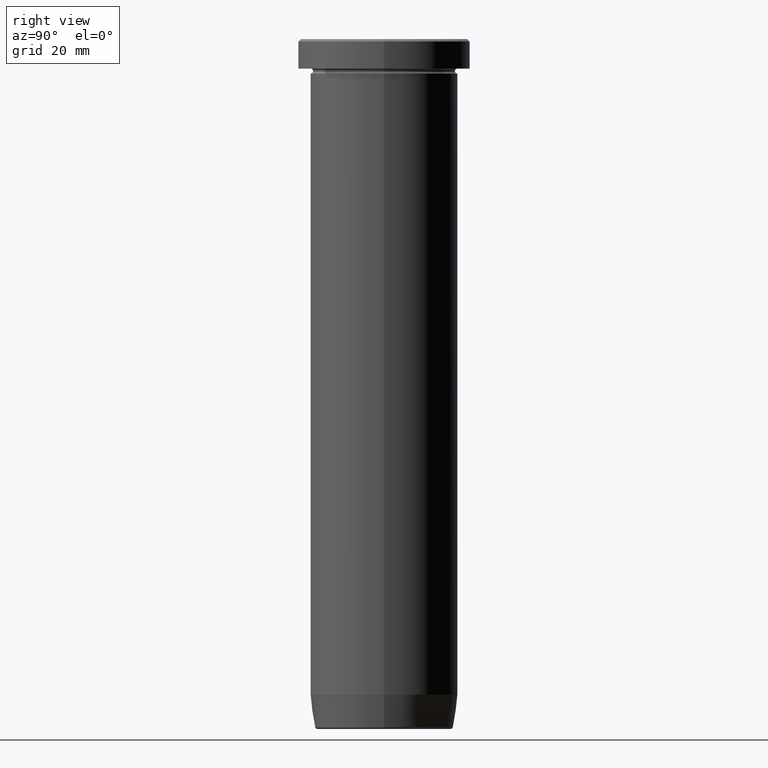
[diagram: clean part render]
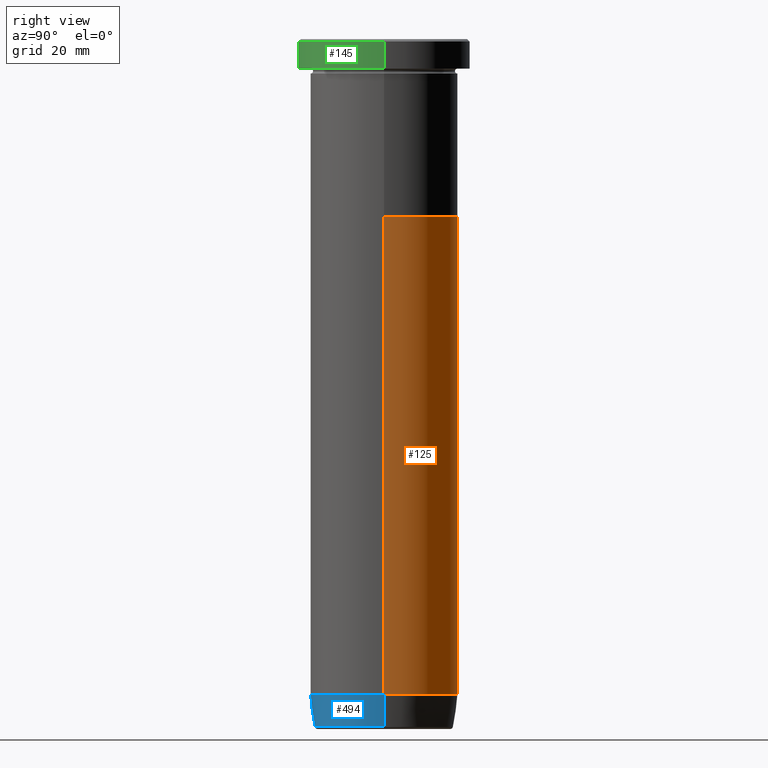
[diagram: same view with three faces highlighted in distinct colors, each labeled with its STEP entity id]
A machine part, right view with three faces highlighted in distinct colors.
Their STEP definitions:

[orange] entity #125 — the highlighted cylindrical surface (partial cylindrical patch) has radius 15 mm, axis along (-0, -0, 1).
#1 = CARTESIAN_POINT ( 'NONE',  ( -15.00000000000000000, 1.836970198721029589E-15, -36.00000000000000000 ) ) ;
#15 = VERTEX_POINT ( 'NONE', #442 ) ;
#25 = CARTESIAN_POINT ( 'NONE',  ( 0.000000000000000000, 0.000000000000000000, -132.9999999999999716 ) ) ;
#37 = DIRECTION ( 'NONE',  ( 1.000000000000000000, 0.000000000000000000, 0.000000000000000000 ) ) ;
#51 = CIRCLE ( 'NONE', #246, 15.00000000000000000 ) ;
#63 = ORIENTED_EDGE ( 'NONE', *, *, #420, .T. ) ;
#85 = DIRECTION ( 'NONE',  ( -0.000000000000000000, -0.000000000000000000, 1.000000000000000000 ) ) ;
#101 = CARTESIAN_POINT ( 'NONE',  ( 0.000000000000000000, 0.000000000000000000, 0.000000000000000000 ) ) ;
#120 = DIRECTION ( 'NONE',  ( -0.000000000000000000, -0.000000000000000000, 1.000000000000000000 ) ) ;
#125 = ADVANCED_FACE ( 'NONE', ( #310 ), #558, .T. ) ;
#128 = AXIS2_PLACEMENT_3D ( 'NONE', #25, #120, #354 ) ;
#134 = EDGE_CURVE ( 'NONE', #380, #245, #51, .T. ) ;
#146 = CARTESIAN_POINT ( 'NONE',  ( 0.000000000000000000, 0.000000000000000000, -36.00000000000000000 ) ) ;
#153 = DIRECTION ( 'NONE',  ( -0.000000000000000000, -0.000000000000000000, 1.000000000000000000 ) ) ;
#159 = CARTESIAN_POINT ( 'NONE',  ( -15.00000000000000000, 1.836970198721029589E-15, 0.000000000000000000 ) ) ;
#177 = EDGE_CURVE ( 'NONE', #572, #380, #423, .T. ) ;
#245 = VERTEX_POINT ( 'NONE', #1 ) ;
#246 = AXIS2_PLACEMENT_3D ( 'NONE', #146, #269, #266 ) ;
#265 = AXIS2_PLACEMENT_3D ( 'NONE', #101, #85, #37 ) ;
#266 = DIRECTION ( 'NONE',  ( 1.000000000000000000, 0.000000000000000000, 0.000000000000000000 ) ) ;
#269 = DIRECTION ( 'NONE',  ( -0.000000000000000000, -0.000000000000000000, 1.000000000000000000 ) ) ;
#282 = LINE ( 'NONE', #159, #294 ) ;
#287 = CARTESIAN_POINT ( 'NONE',  ( 15.00000000000000000, 0.000000000000000000, -36.00000000000000000 ) ) ;
#291 = EDGE_LOOP ( 'NONE', ( #520, #63, #576, #484 ) ) ;
#294 = VECTOR ( 'NONE', #153, 1000.000000000000000 ) ;
#297 = CARTESIAN_POINT ( 'NONE',  ( 15.00000000000000000, 0.000000000000000000, -132.9999999999999716 ) ) ;
#300 = CIRCLE ( 'NONE', #128, 15.00000000000000000 ) ;
#310 = FACE_OUTER_BOUND ( 'NONE', #291, .T. ) ;
#317 = CARTESIAN_POINT ( 'NONE',  ( 15.00000000000000000, 0.000000000000000000, 0.000000000000000000 ) ) ;
#354 = DIRECTION ( 'NONE',  ( 1.000000000000000000, 0.000000000000000000, 0.000000000000000000 ) ) ;
#380 = VERTEX_POINT ( 'NONE', #287 ) ;
#420 = EDGE_CURVE ( 'NONE', #15, #245, #282, .T. ) ;
#423 = LINE ( 'NONE', #317, #474 ) ;
#442 = CARTESIAN_POINT ( 'NONE',  ( -15.00000000000000000, 1.836970198721029589E-15, -132.9999999999999716 ) ) ;
#474 = VECTOR ( 'NONE', #553, 1000.000000000000000 ) ;
#484 = ORIENTED_EDGE ( 'NONE', *, *, #177, .F. ) ;
#520 = ORIENTED_EDGE ( 'NONE', *, *, #550, .T. ) ;
#550 = EDGE_CURVE ( 'NONE', #572, #15, #300, .T. ) ;
#553 = DIRECTION ( 'NONE',  ( -0.000000000000000000, -0.000000000000000000, 1.000000000000000000 ) ) ;
#558 = CYLINDRICAL_SURFACE ( 'NONE', #265, 15.00000000000000000 ) ;
#572 = VERTEX_POINT ( 'NONE', #297 ) ;
#576 = ORIENTED_EDGE ( 'NONE', *, *, #134, .F. ) ;

[blue] entity #494 — the highlighted conical surface has half-angle 8 deg.
#15 = VERTEX_POINT ( 'NONE', #442 ) ;
#17 = ORIENTED_EDGE ( 'NONE', *, *, #353, .T. ) ;
#24 = VERTEX_POINT ( 'NONE', #542 ) ;
#60 = EDGE_CURVE ( 'NONE', #67, #15, #364, .T. ) ;
#67 = VERTEX_POINT ( 'NONE', #552 ) ;
#70 = AXIS2_PLACEMENT_3D ( 'NONE', #496, #77, #79 ) ;
#77 = DIRECTION ( 'NONE',  ( -0.000000000000000000, -0.000000000000000000, 1.000000000000000000 ) ) ;
#79 = DIRECTION ( 'NONE',  ( -1.000000000000000000, 0.000000000000000000, 0.000000000000000000 ) ) ;
#82 = AXIS2_PLACEMENT_3D ( 'NONE', #277, #470, #280 ) ;
#107 = DIRECTION ( 'NONE',  ( 0.1391731009600661317, 0.000000000000000000, 0.9902680687415702510 ) ) ;
#114 = EDGE_CURVE ( 'NONE', #15, #572, #189, .T. ) ;
#170 = DIRECTION ( 'NONE',  ( 1.000000000000000000, 0.000000000000000000, 0.000000000000000000 ) ) ;
#187 = CARTESIAN_POINT ( 'NONE',  ( -14.01621415708325280, 1.716491180363582438E-15, -139.9999999999999716 ) ) ;
#189 = CIRCLE ( 'NONE', #82, 15.00000000000000000 ) ;
#200 = CIRCLE ( 'NONE', #70, 14.07670482254592592 ) ;
#244 = ORIENTED_EDGE ( 'NONE', *, *, #114, .F. ) ;
#258 = DIRECTION ( 'NONE',  ( -0.000000000000000000, -0.000000000000000000, 1.000000000000000000 ) ) ;
#261 = FACE_OUTER_BOUND ( 'NONE', #574, .T. ) ;
#263 = AXIS2_PLACEMENT_3D ( 'NONE', #587, #258, #170 ) ;
#277 = CARTESIAN_POINT ( 'NONE',  ( 0.000000000000000000, 0.000000000000000000, -132.9999999999999716 ) ) ;
#280 = DIRECTION ( 'NONE',  ( 1.000000000000000000, 0.000000000000000000, 0.000000000000000000 ) ) ;
#297 = CARTESIAN_POINT ( 'NONE',  ( 15.00000000000000000, 0.000000000000000000, -132.9999999999999716 ) ) ;
#328 = LINE ( 'NONE', #377, #588 ) ;
#347 = VECTOR ( 'NONE', #367, 1000.000000000000000 ) ;
#353 = EDGE_CURVE ( 'NONE', #24, #572, #328, .T. ) ;
#364 = LINE ( 'NONE', #187, #347 ) ;
#367 = DIRECTION ( 'NONE',  ( -0.1391731009600661317, 1.704378926181564302E-17, 0.9902680687415702510 ) ) ;
#377 = CARTESIAN_POINT ( 'NONE',  ( 14.01621415708325280, 0.000000000000000000, -139.9999999999999716 ) ) ;
#442 = CARTESIAN_POINT ( 'NONE',  ( -15.00000000000000000, 1.836970198721029589E-15, -132.9999999999999716 ) ) ;
#470 = DIRECTION ( 'NONE',  ( -0.000000000000000000, -0.000000000000000000, 1.000000000000000000 ) ) ;
#475 = ORIENTED_EDGE ( 'NONE', *, *, #559, .T. ) ;
#477 = ORIENTED_EDGE ( 'NONE', *, *, #60, .F. ) ;
#494 = ADVANCED_FACE ( 'NONE', ( #261 ), #595, .T. ) ;
#496 = CARTESIAN_POINT ( 'NONE',  ( 0.000000000000000000, 0.000000000000000000, -139.5695865504800111 ) ) ;
#542 = CARTESIAN_POINT ( 'NONE',  ( 14.07670482254592592, 0.000000000000000000, -139.5695865504800111 ) ) ;
#552 = CARTESIAN_POINT ( 'NONE',  ( -14.07670482254592592, 1.780434674534163799E-15, -139.5695865504800111 ) ) ;
#559 = EDGE_CURVE ( 'NONE', #67, #24, #200, .T. ) ;
#572 = VERTEX_POINT ( 'NONE', #297 ) ;
#574 = EDGE_LOOP ( 'NONE', ( #477, #475, #17, #244 ) ) ;
#587 = CARTESIAN_POINT ( 'NONE',  ( 0.000000000000000000, 0.000000000000000000, -139.9999999999999716 ) ) ;
#588 = VECTOR ( 'NONE', #107, 1000.000000000000000 ) ;
#595 = CONICAL_SURFACE ( 'NONE', #263, 14.01621415708325280, 0.1396263401595470577 ) ;

[green] entity #145 — the highlighted cylindrical surface (partial cylindrical patch) has radius 17.5 mm, axis along (-0, -0, 1).
#7 = DIRECTION ( 'NONE',  ( 1.000000000000000000, 0.000000000000000000, 0.000000000000000000 ) ) ;
#34 = VERTEX_POINT ( 'NONE', #250 ) ;
#36 = EDGE_CURVE ( 'NONE', #157, #403, #260, .T. ) ;
#40 = FACE_OUTER_BOUND ( 'NONE', #202, .T. ) ;
#47 = CARTESIAN_POINT ( 'NONE',  ( 0.000000000000000000, 0.000000000000000000, 0.000000000000000000 ) ) ;
#59 = VECTOR ( 'NONE', #372, 1000.000000000000000 ) ;
#61 = ORIENTED_EDGE ( 'NONE', *, *, #515, .F. ) ;
#135 = DIRECTION ( 'NONE',  ( -0.000000000000000000, -0.000000000000000000, 1.000000000000000000 ) ) ;
#136 = AXIS2_PLACEMENT_3D ( 'NONE', #444, #385, #7 ) ;
#145 = ADVANCED_FACE ( 'NONE', ( #40 ), #227, .T. ) ;
#157 = VERTEX_POINT ( 'NONE', #320 ) ;
#167 = LINE ( 'NONE', #590, #555 ) ;
#168 = EDGE_CURVE ( 'NONE', #34, #157, #460, .T. ) ;
#169 = AXIS2_PLACEMENT_3D ( 'NONE', #445, #393, #399 ) ;
#176 = DIRECTION ( 'NONE',  ( -0.000000000000000000, -0.000000000000000000, 1.000000000000000000 ) ) ;
#201 = CARTESIAN_POINT ( 'NONE',  ( -17.50000000000000000, 2.143131898507868248E-15, -0.5000000000000073275 ) ) ;
#202 = EDGE_LOOP ( 'NONE', ( #61, #431, #252, #461 ) ) ;
#225 = CARTESIAN_POINT ( 'NONE',  ( 17.50000000000000000, 0.000000000000000000, 0.000000000000000000 ) ) ;
#227 = CYLINDRICAL_SURFACE ( 'NONE', #321, 17.50000000000000000 ) ;
#250 = CARTESIAN_POINT ( 'NONE',  ( 17.50000000000000000, 0.000000000000000000, -5.999999999999999112 ) ) ;
#252 = ORIENTED_EDGE ( 'NONE', *, *, #168, .T. ) ;
#260 = CIRCLE ( 'NONE', #169, 17.50000000000000000 ) ;
#320 = CARTESIAN_POINT ( 'NONE',  ( 17.50000000000000000, 0.000000000000000000, -0.5000000000000073275 ) ) ;
#321 = AXIS2_PLACEMENT_3D ( 'NONE', #47, #135, #416 ) ;
#358 = EDGE_CURVE ( 'NONE', #366, #34, #392, .T. ) ;
#366 = VERTEX_POINT ( 'NONE', #575 ) ;
#372 = DIRECTION ( 'NONE',  ( -0.000000000000000000, -0.000000000000000000, 1.000000000000000000 ) ) ;
#385 = DIRECTION ( 'NONE',  ( -0.000000000000000000, -0.000000000000000000, 1.000000000000000000 ) ) ;
#392 = CIRCLE ( 'NONE', #136, 17.50000000000000000 ) ;
#393 = DIRECTION ( 'NONE',  ( 0.000000000000000000, 0.000000000000000000, -1.000000000000000000 ) ) ;
#399 = DIRECTION ( 'NONE',  ( 1.000000000000000000, 0.000000000000000000, 0.000000000000000000 ) ) ;
#403 = VERTEX_POINT ( 'NONE', #201 ) ;
#416 = DIRECTION ( 'NONE',  ( 1.000000000000000000, 0.000000000000000000, 0.000000000000000000 ) ) ;
#431 = ORIENTED_EDGE ( 'NONE', *, *, #358, .T. ) ;
#444 = CARTESIAN_POINT ( 'NONE',  ( 0.000000000000000000, 0.000000000000000000, -5.999999999999999112 ) ) ;
#445 = CARTESIAN_POINT ( 'NONE',  ( 0.000000000000000000, 0.000000000000000000, -0.5000000000000073275 ) ) ;
#460 = LINE ( 'NONE', #225, #59 ) ;
#461 = ORIENTED_EDGE ( 'NONE', *, *, #36, .T. ) ;
#515 = EDGE_CURVE ( 'NONE', #366, #403, #167, .T. ) ;
#555 = VECTOR ( 'NONE', #176, 1000.000000000000000 ) ;
#575 = CARTESIAN_POINT ( 'NONE',  ( -17.50000000000000000, 2.143131898507868248E-15, -5.999999999999999112 ) ) ;
#590 = CARTESIAN_POINT ( 'NONE',  ( -17.50000000000000000, 2.143131898507868248E-15, 0.000000000000000000 ) ) ;